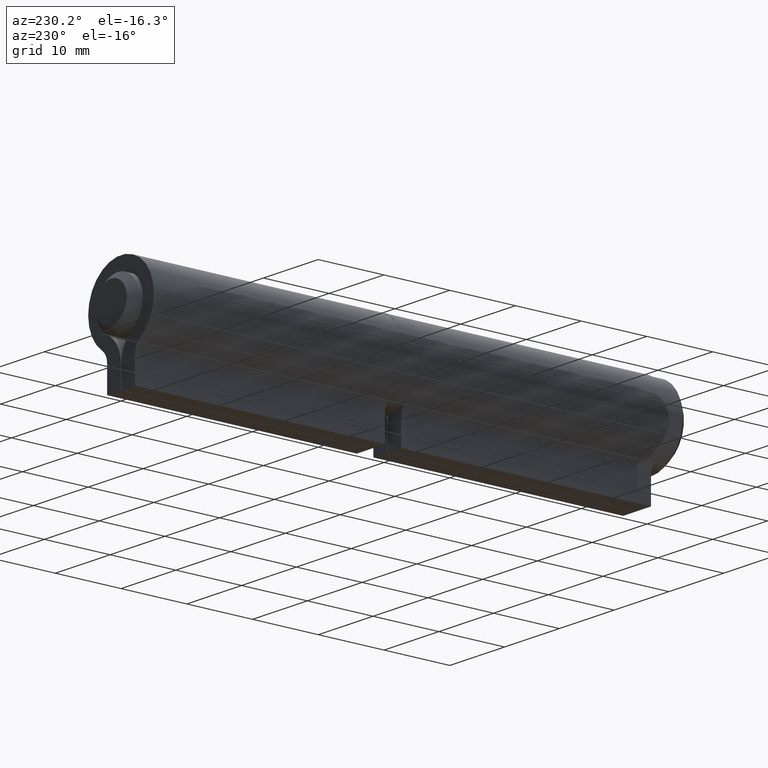
[diagram: clean part render]
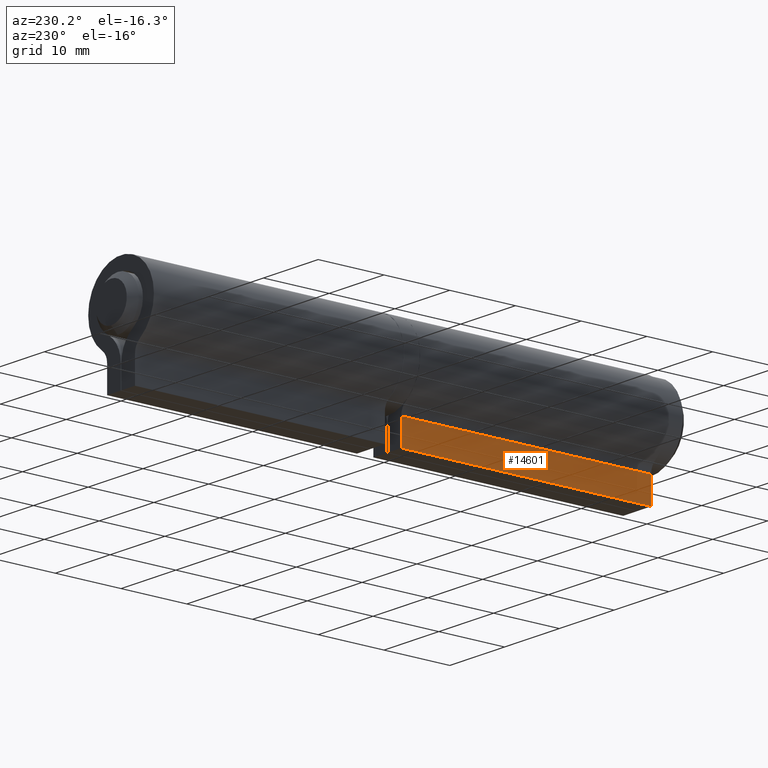
[diagram: same view with one face highlighted and labeled with its STEP entity id]
A machine part, auxiliary view. The second image highlights one B-rep face of the part: STEP entity #14601.
In plain terms, the highlighted planar face has unit normal (1, 0, -0).
Its self-contained STEP definition (entity closure, byte-faithful):
#520 = DIRECTION ( 'NONE',  ( 1.106352338166817511E-16, 0.000000000000000000, 1.000000000000000000 ) ) ;
#749 = EDGE_CURVE ( 'NONE', #9996, #6800, #14432, .T. ) ;
#778 = LINE ( 'NONE', #3047, #10335 ) ;
#1364 = CARTESIAN_POINT ( 'NONE',  ( -2.549999999999999822, -19.00000000000000355, -10.50000000000000000 ) ) ;
#1497 = VERTEX_POINT ( 'NONE', #1364 ) ;
#1506 = LINE ( 'NONE', #14473, #2810 ) ;
#2810 = VECTOR ( 'NONE', #520, 1000.000000000000000 ) ;
#3047 = CARTESIAN_POINT ( 'NONE',  ( -2.549999999999999822, 19.00000000000000000, -10.50000000000000000 ) ) ;
#3188 = DIRECTION ( 'NONE',  ( 1.106352338166817511E-16, 0.000000000000000000, 1.000000000000000000 ) ) ;
#3358 = CARTESIAN_POINT ( 'NONE',  ( -2.549999999999999378, 19.00000000000000000, -6.580083586095240911 ) ) ;
#3451 = AXIS2_PLACEMENT_3D ( 'NONE', #5983, #14180, #6995 ) ;
#4588 = ORIENTED_EDGE ( 'NONE', *, *, #6335, .T. ) ;
#4655 = ORIENTED_EDGE ( 'NONE', *, *, #749, .F. ) ;
#5489 = EDGE_LOOP ( 'NONE', ( #4588, #4655, #11783, #12904 ) ) ;
#5983 = CARTESIAN_POINT ( 'NONE',  ( -2.549999999999999822, 19.00000000000000000, -10.50000000000000000 ) ) ;
#6335 = EDGE_CURVE ( 'NONE', #1497, #6800, #1506, .T. ) ;
#6800 = VERTEX_POINT ( 'NONE', #13386 ) ;
#6995 = DIRECTION ( 'NONE',  ( -1.106352338166817511E-16, 0.000000000000000000, -1.000000000000000000 ) ) ;
#8045 = VECTOR ( 'NONE', #9009, 1000.000000000000000 ) ;
#9009 = DIRECTION ( 'NONE',  ( -0.000000000000000000, -1.000000000000000000, -0.000000000000000000 ) ) ;
#9266 = LINE ( 'NONE', #14841, #10894 ) ;
#9855 = CARTESIAN_POINT ( 'NONE',  ( -2.549999999999999822, 19.00000000000000000, -10.50000000000000000 ) ) ;
#9996 = VERTEX_POINT ( 'NONE', #3358 ) ;
#9999 = CARTESIAN_POINT ( 'NONE',  ( -2.549999999999999378, 19.00000000000000000, -6.580083586095240911 ) ) ;
#10335 = VECTOR ( 'NONE', #11235, 1000.000000000000000 ) ;
#10894 = VECTOR ( 'NONE', #3188, 1000.000000000000000 ) ;
#11235 = DIRECTION ( 'NONE',  ( -0.000000000000000000, -1.000000000000000000, -0.000000000000000000 ) ) ;
#11267 = VERTEX_POINT ( 'NONE', #9855 ) ;
#11783 = ORIENTED_EDGE ( 'NONE', *, *, #12077, .F. ) ;
#12077 = EDGE_CURVE ( 'NONE', #11267, #9996, #9266, .T. ) ;
#12718 = FACE_OUTER_BOUND ( 'NONE', #5489, .T. ) ;
#12904 = ORIENTED_EDGE ( 'NONE', *, *, #13709, .T. ) ;
#13013 = PLANE ( 'NONE',  #3451 ) ;
#13386 = CARTESIAN_POINT ( 'NONE',  ( -2.549999999999999378, -19.00000000000000355, -6.580083586095240911 ) ) ;
#13709 = EDGE_CURVE ( 'NONE', #11267, #1497, #778, .T. ) ;
#14180 = DIRECTION ( 'NONE',  ( 1.000000000000000000, 0.000000000000000000, -1.106352338166817511E-16 ) ) ;
#14432 = LINE ( 'NONE', #9999, #8045 ) ;
#14473 = CARTESIAN_POINT ( 'NONE',  ( -2.549999999999999822, -19.00000000000000355, -10.50000000000000000 ) ) ;
#14601 = ADVANCED_FACE ( 'NONE', ( #12718 ), #13013, .F. ) ;
#14841 = CARTESIAN_POINT ( 'NONE',  ( -2.549999999999999822, 19.00000000000000000, -10.50000000000000000 ) ) ;